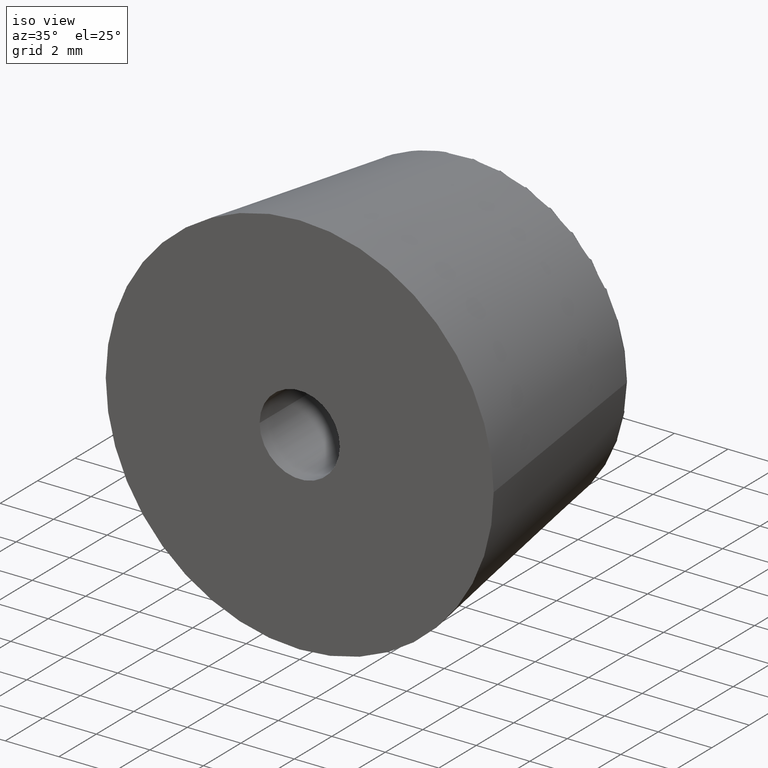
[diagram: clean part render]
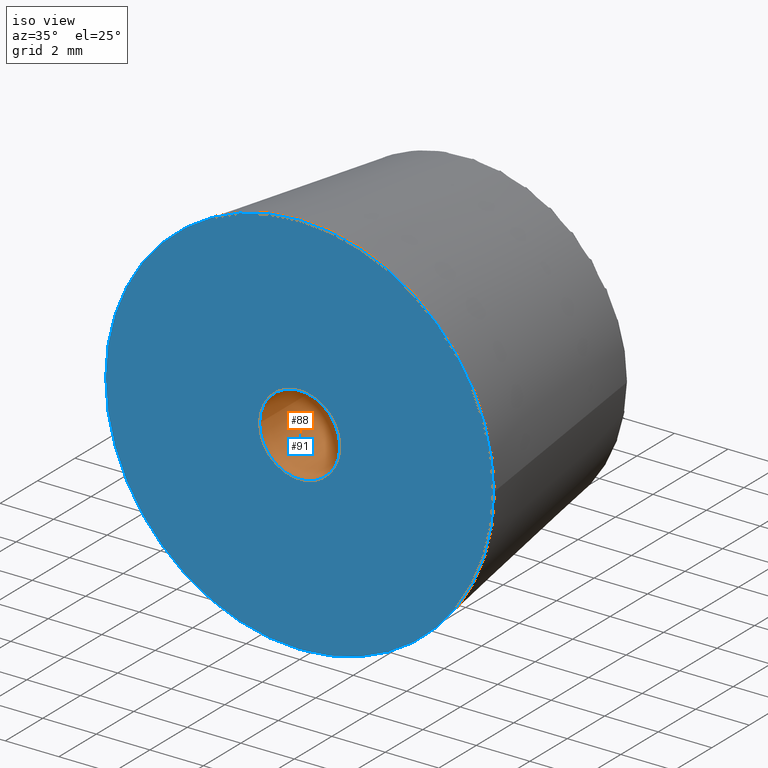
[diagram: same view with the hole feature highlighted: cylindrical wall and planar end face, labeled with their STEP entity ids]
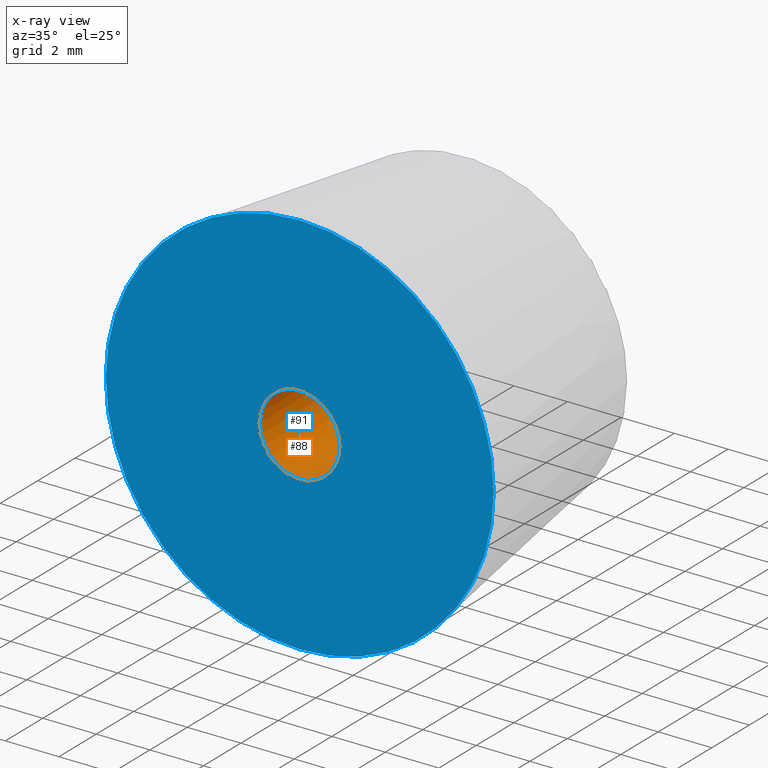
[diagram: x-ray of the same camera — body ghosted, the hole faces saturated]
A machine part, iso view. The highlighted faces form one hole feature of diameter 3 mm: the cylindrical wall (entity #88, orange) and its adjacent planar end face (entity #91, blue) — they share a circular edge in the B-rep.
The next image is the same camera in x-ray (body ghosted, the hole faces saturated) — the bore reads through the body.
Wall:
#15=CYLINDRICAL_SURFACE('',#101,1.5);
#24=FACE_BOUND('',#42,.T.);
#31=FACE_OUTER_BOUND('',#41,.T.);
#41=EDGE_LOOP('',(#76));
#42=EDGE_LOOP('',(#77));
#53=CIRCLE('',#102,1.5);
#54=CIRCLE('',#103,1.5);
#60=VERTEX_POINT('',#151);
#61=VERTEX_POINT('',#153);
#67=EDGE_CURVE('',#60,#60,#53,.T.);
#68=EDGE_CURVE('',#61,#61,#54,.T.);
#76=ORIENTED_EDGE('',*,*,#67,.F.);
#77=ORIENTED_EDGE('',*,*,#68,.F.);
#88=ADVANCED_FACE('',(#31,#24),#15,.F.);
#101=AXIS2_PLACEMENT_3D('',#150,#124,#125);
#102=AXIS2_PLACEMENT_3D('',#152,#126,#127);
#103=AXIS2_PLACEMENT_3D('',#154,#128,#129);
#124=DIRECTION('center_axis',(0.,1.,0.));
#125=DIRECTION('ref_axis',(-1.,0.,0.));
#126=DIRECTION('center_axis',(0.,1.,0.));
#127=DIRECTION('ref_axis',(-1.,0.,0.));
#128=DIRECTION('center_axis',(0.,-1.,0.));
#129=DIRECTION('ref_axis',(-1.,0.,0.));
#150=CARTESIAN_POINT('Origin',(0.,0.5,0.));
#151=CARTESIAN_POINT('',(1.5,0.,-1.83697019872103E-16));
#152=CARTESIAN_POINT('Origin',(0.,0.,0.));
#153=CARTESIAN_POINT('',(-1.5,5.5,0.));
#154=CARTESIAN_POINT('Origin',(0.,5.5,0.));
End face:
#20=PLANE('',#107);
#27=FACE_BOUND('',#48,.T.);
#34=FACE_OUTER_BOUND('',#47,.T.);
#47=EDGE_LOOP('',(#82));
#48=EDGE_LOOP('',(#83));
#52=CIRCLE('',#100,7.25);
#53=CIRCLE('',#102,1.5);
#59=VERTEX_POINT('',#148);
#60=VERTEX_POINT('',#151);
#66=EDGE_CURVE('',#59,#59,#52,.T.);
#67=EDGE_CURVE('',#60,#60,#53,.T.);
#82=ORIENTED_EDGE('',*,*,#66,.F.);
#83=ORIENTED_EDGE('',*,*,#67,.T.);
#91=ADVANCED_FACE('',(#34,#27),#20,.F.);
#100=AXIS2_PLACEMENT_3D('',#149,#122,#123);
#102=AXIS2_PLACEMENT_3D('',#152,#126,#127);
#107=AXIS2_PLACEMENT_3D('',#159,#136,#137);
#122=DIRECTION('center_axis',(0.,1.,0.));
#123=DIRECTION('ref_axis',(1.,0.,0.));
#126=DIRECTION('center_axis',(0.,1.,0.));
#127=DIRECTION('ref_axis',(-1.,0.,0.));
#136=DIRECTION('center_axis',(0.,1.,0.));
#137=DIRECTION('ref_axis',(0.,0.,1.));
#148=CARTESIAN_POINT('',(7.25,0.,0.));
#149=CARTESIAN_POINT('Origin',(0.,0.,0.));
#151=CARTESIAN_POINT('',(1.5,0.,-1.83697019872103E-16));
#152=CARTESIAN_POINT('Origin',(0.,0.,0.));
#159=CARTESIAN_POINT('Origin',(0.,0.,0.));